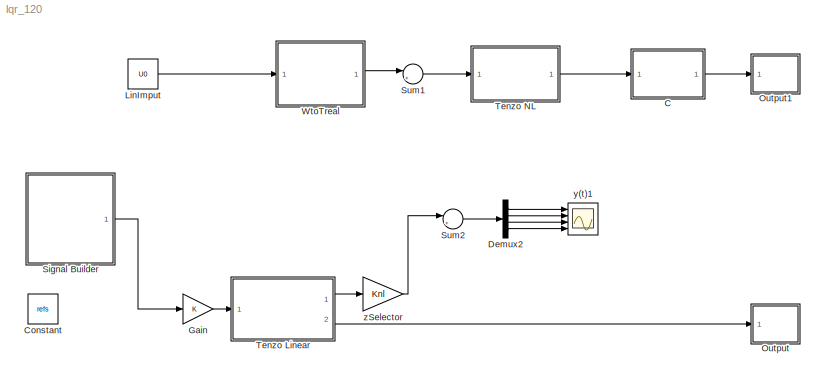
MODEL lqr_120
KIND model
BLOCK [SubSystem] C
  ErrorFcn = Stateflow.Translate.translate
  FunctionWithSeparateData = off
  MaskHideContents = off
  MinAlgLoopOccurrences = off
  Opaque = off
  PermitHierarchicalResolution = ExplicitOnly
  Ports = [1, 1]
  PropExecContextOutsideSubsystem = off
  RTWSystemCode = Auto
  RequestExecContextInheritance = off
  SFBlockType = MATLAB Function
  SID = 169
  TreatAsAtomicUnit = on
BLOCK [Demux] C/ Demux 
  Outputs = 1
  Ports = [1, 1]
  SID = 169::24
BLOCK [S-Function] C/ SFunction 
  EnableBusSupport = on
  FunctionName = sf_sfun
  PortCounts = [1 2]
  Ports = [1, 2]
  SID = 169::23
  Tag = Stateflow S-Function lqr_120 1
BLOCK [Terminator] C/ Terminator 
  SID = 169::25
BLOCK [Inport] C/X
  IconDisplay = Port number
  SID = 169::1
BLOCK [Outport] C/ymis
  IconDisplay = Port number
  SID = 169::5
BLOCK [Constant] Constant
  SID = 32
  Value = refs
BLOCK [Demux] Demux2
  DisplayOption = bar
  Ports = [1, 4]
  SID = 175
BLOCK [Gain] Gain
  OutDataTypeStr = Inherit: Inherit via internal rule
  ParamDataTypeStr = Inherit: Inherit via internal rule
  SID = 33
  SaturateOnIntegerOverflow = off
BLOCK [Constant] LinImput
  SID = 119
  Value = U0
BLOCK [SubSystem] Output
  FunctionWithSeparateData = off
  MaskHideContents = off
  MinAlgLoopOccurrences = off
  Opaque = off
  Ports = [1]
  PropExecContextOutsideSubsystem = off
  RTWSystemCode = Auto
  RequestExecContextInheritance = off
  SID = 46
BLOCK [Demux] Output/Demux2
  DisplayOption = bar
  Ports = [1, 4]
  SID = 48
BLOCK [Demux] Output/Demux3
  DisplayOption = bar
  Outputs = 3
  Ports = [1, 3]
  SID = 197
BLOCK [Inport] Output/In1
  IconDisplay = Port number
  SID = 47
BLOCK [Mux] Output/Mux
  DisplayOption = bar
  Inputs = 3
  Ports = [3, 1]
  SID = 202
BLOCK [Reference] Output/R2D  REF=simulink_extras/Transformations/Radians\nto Degrees
  Ports = [1, 1]
  SID = 198
  SourceBlock = simulink_extras/Transformations/Radians\nto Degrees
  SourceType = RadiansToDegrees
BLOCK [Scope] Output/y(t)1
  DataFormat = StructureWithTime
  Floating = off
  LimitDataPoints = off
  NumInputPorts = 4
  Ports = [4]
  SID = 50
  SampleTime = 0
  ShowLegends = off
  YMax = 0~1.75~0~1
  YMin = -1.75~0~-30~-2.25
  ZoomMode = xonly
BLOCK [SubSystem] Output1
  FunctionWithSeparateData = off
  MaskHideContents = off
  MinAlgLoopOccurrences = off
  Opaque = off
  Ports = [1]
  PropExecContextOutsideSubsystem = off
  RTWSystemCode = Auto
  RequestExecContextInheritance = off
  SID = 122
BLOCK [Demux] Output1/Demux3
  DisplayOption = bar
  Ports = [1, 4]
  SID = 203
BLOCK [Demux] Output1/Demux4
  DisplayOption = bar
  Outputs = 3
  Ports = [1, 3]
  SID = 204
BLOCK [Inport] Output1/In1
  IconDisplay = Port number
  SID = 123
BLOCK [Mux] Output1/Mux
  DisplayOption = bar
  Inputs = 3
  Ports = [3, 1]
  SID = 205
BLOCK [Reference] Output1/R2D  REF=simulink_extras/Transformations/Radians\nto Degrees
  Ports = [1, 1]
  SID = 206
  SourceBlock = simulink_extras/Transformations/Radians\nto Degrees
  SourceType = RadiansToDegrees
BLOCK [Scope] Output1/y(t)1
  DataFormat = StructureWithTime
  Floating = off
  LimitDataPoints = off
  NumInputPorts = 4
  Ports = [4]
  SID = 207
  SampleTime = 0
  SaveName = ScopeData10
  ShowLegends = off
  YMax = 68.7549~1~1~165
  YMin = 68.7549~-1~-1~151
BLOCK [SubSystem] Signal Builder
  ClipboardFcn = sigbuilder_block('clipboard');
  CloseFcn = sigbuilder_block('close');
  ContinueFcn = sigbuilder_block('continue');
  CopyFcn = sigbuilder_block('copy');
  DeleteFcn = sigbuilder_block('delete');
  FunctionWithSeparateData = off
  LoadFcn = sigbuilder_block('load');
  MaskCapabilities = slmaskedcaps(gcbh)
  MaskDescription = Simulink:masks:SigbuilderBlock_MD
  MaskDisplay = plot(0, 0, 100, 100,[2, 2, 32, 32, 2], [68, 8, 8, 68, 68],[32, 2], [38, 38], [32, 19, 2],[53, 60, 44], [32, 17, 17, 2],[16, 16, 31, 31]);txt = getActiveGroup(gcbh);text(2, 100, txt,'verticalAlignment', 'top');
  MaskHideContents = on
  MaskIconFrame = on
  MaskIconOpaque = off
  MaskIconRotate = port
  MaskIconUnits = autoscale
  MaskInitialization = if ~strcmp(get_param(bdroot(gcbh),'SimulationStatus'),'stopped') tuvar = sigbuilder_block('maskInit'); end
  MaskPortRotate = default
  MaskSelfModifiable = on
  MaskType = Sigbuilder block
  MinAlgLoopOccurrences = off
  ModelCloseFcn = sigbuilder_block('modelClose');
  NameChangeFcn = sigbuilder_block('namechange');
  Opaque = off
  OpenFcn = sigbuilder_block('open',[42.4 0 1050.4 528.8 ]);
  PauseFcn = sigbuilder_block('pause');
  Ports = [0, 1]
  PreSaveFcn = sigbuilder_block('preSave');
  PropExecContextOutsideSubsystem = off
  RTWSystemCode = Auto
  RequestExecContextInheritance = off
  SID = 180
  StartFcn = sigbuilder_block('start');
  StopFcn = sigbuilder_block('stop');
  Tag = STV Subsys
BLOCK [Outport] Signal Builder/Bus
  IconDisplay = Port number
  SID = 180:51
BLOCK [BusCreator] Signal Builder/Bus Creator
  Inputs = 8
  Ports = [8, 1]
  SID = 180:50
  Tag = Bus Creator
BLOCK [FromWorkspace] Signal Builder/FromWs
  SID = 180:2
  SampleTime = 0
  SigBuilderData = DataTag0
  Tag = STV FromWs
  VariableName = tuvar
  VnvData = DataTag1
  ZeroCross = on
BLOCK [SubSystem] Signal Builder/Subsystem
  FunctionWithSeparateData = off
  MaskHideContents = off
  MinAlgLoopOccurrences = off
  Opaque = off
  Ports = [1, 8]
  PropExecContextOutsideSubsystem = off
  RTWSystemCode = Auto
  RequestExecContextInheritance = off
  SID = 180:39
BLOCK [Demux] Signal Builder/Subsystem/Demux
  Outputs = 8
  Ports = [1, 8]
  SID = 180:40
  Tag = STV Demux
BLOCK [Inport] Signal Builder/Subsystem/In1
  IconDisplay = Port number
  SID = 180:49
BLOCK [Outport] Signal Builder/Subsystem/Psi
  IconDisplay = Port number
  Port = 5
  SID = 180:45
  Tag = STV Outport
BLOCK [Outport] Signal Builder/Subsystem/Ze
  IconDisplay = Port number
  SID = 180:41
  Tag = STV Outport
BLOCK [Outport] Signal Builder/Subsystem/phi
  IconDisplay = Port number
  Port = 3
  SID = 180:43
  Tag = STV Outport
BLOCK [Outport] Signal Builder/Subsystem/theta
  IconDisplay = Port number
  Port = 4
  SID = 180:44
  Tag = STV Outport
BLOCK [Outport] Signal Builder/Subsystem/vZe
  IconDisplay = Port number
  Port = 2
  SID = 180:42
  Tag = STV Outport
BLOCK [Outport] Signal Builder/Subsystem/wPhi
  IconDisplay = Port number
  Port = 6
  SID = 180:46
  Tag = STV Outport
BLOCK [Outport] Signal Builder/Subsystem/wPsi
  IconDisplay = Port number
  Port = 8
  SID = 180:48
  Tag = STV Outport
BLOCK [Outport] Signal Builder/Subsystem/wTheta
  IconDisplay = Port number
  Port = 7
  SID = 180:47
  Tag = STV Outport
BLOCK [Sum] Sum1
  IconShape = round
  InputSameDT = off
  Inputs = |++
  OutDataTypeStr = Inherit: Inherit via internal rule
  Ports = [2, 1]
  SID = 120
  SaturateOnIntegerOverflow = off
BLOCK [Sum] Sum2
  IconShape = round
  InputSameDT = off
  Inputs = |+-
  OutDataTypeStr = Inherit: Inherit via internal rule
  Ports = [2, 1]
  SID = 177
  SaturateOnIntegerOverflow = off
BLOCK [SubSystem] Tenzo Linear
  FunctionWithSeparateData = off
  MaskHideContents = off
  MinAlgLoopOccurrences = off
  Opaque = off
  Ports = [1, 2]
  PropExecContextOutsideSubsystem = off
  RTWSystemCode = Auto
  RequestExecContextInheritance = off
  SID = 140
BLOCK [SubSystem] Tenzo Linear/Error
  FunctionWithSeparateData = off
  MaskHideContents = off
  MinAlgLoopOccurrences = off
  Opaque = off
  Ports = [1]
  PropExecContextOutsideSubsystem = off
  RTWSystemCode = Auto
  RequestExecContextInheritance = off
  SID = 34
BLOCK [Demux] Tenzo Linear/Error/Demux10
  DisplayOption = bar
  Outputs = 2
  Ports = [1, 2]
  SID = 36
BLOCK [Demux] Tenzo Linear/Error/Demux2
  DisplayOption = bar
  Outputs = 2
  Ports = [1, 2]
  SID = 37
BLOCK [Demux] Tenzo Linear/Error/Demux3
  DisplayOption = bar
  Outputs = 2
  Ports = [1, 2]
  SID = 38
BLOCK [Demux] Tenzo Linear/Error/Demux4
  DisplayOption = bar
  Ports = [1, 4]
  SID = 39
BLOCK [Demux] Tenzo Linear/Error/Demux7
  DisplayOption = bar
  Outputs = 2
  Ports = [1, 2]
  SID = 40
BLOCK [Inport] Tenzo Linear/Error/In1
  IconDisplay = Port number
  SID = 35
BLOCK [Reference] Tenzo Linear/Error/R2D2  REF=simulink_extras/Transformations/Radians\nto Degrees
  Ports = [1, 1]
  SID = 41
  SourceBlock = simulink_extras/Transformations/Radians\nto Degrees
  SourceType = RadiansToDegrees
BLOCK [Reference] Tenzo Linear/Error/R2D3  REF=simulink_extras/Transformations/Radians\nto Degrees
  Ports = [1, 1]
  SID = 42
  SourceBlock = simulink_extras/Transformations/Radians\nto Degrees
  SourceType = RadiansToDegrees
BLOCK [Scope] Tenzo Linear/Error/RollPitchYaw1
  DataFormat = StructureWithTime
  Floating = off
  NumInputPorts = 3
  Ports = [3]
  SID = 43
  SampleTime = 0
  SaveName = ScopeData21
  ShowLegends = off
  YMax = -1400~1950~8e+06
  YMin = -2150~1300~5.75e+06
  ZoomMode = yonly
BLOCK [Scope] Tenzo Linear/Error/wx1
  DataFormat = StructureWithTime
  Floating = off
  NumInputPorts = 3
  Ports = [3]
  SID = 44
  SampleTime = 0
  SaveName = ScopeData24
  ShowLegends = off
  TimeRange = 10
  YMax = -320000~380000~2.5e+07
  YMin = -415000~295000~2.1e+07
BLOCK [Scope] Tenzo Linear/Error/xe1
  DataFormat = StructureWithTime
  Floating = off
  LimitDataPoints = off
  NumInputPorts = 2
  Ports = [2]
  SID = 45
  SampleTime = 0
  SaveName = ScopeData25
  ShowLegends = off
  TimeRange = 3
  YMax = 3e-05~3e-05
  YMin = 1.6e-05~1.6e-05
BLOCK [SubSystem] Tenzo Linear/Luenberger Obs
  FunctionWithSeparateData = off
  MaskHideContents = off
  MinAlgLoopOccurrences = off
  Opaque = off
  Ports = [2, 1]
  PropExecContextOutsideSubsystem = off
  RTWSystemCode = Auto
  RequestExecContextInheritance = off
  SID = 3
BLOCK [Demux] Tenzo Linear/Luenberger Obs/Demux1
  DisplayOption = bar
  Outputs = 3
  Ports = [1, 3]
  SID = 208
BLOCK [Demux] Tenzo Linear/Luenberger Obs/Demux2
  DisplayOption = bar
  Outputs = 8
  Ports = [1, 8]
  SID = 183
BLOCK [SubSystem] Tenzo Linear/Luenberger Obs/Luenberger
  FunctionWithSeparateData = off
  MaskHideContents = off
  MinAlgLoopOccurrences = off
  Opaque = off
  Ports = [2, 1]
  PropExecContextOutsideSubsystem = off
  RTWSystemCode = Auto
  RequestExecContextInheritance = off
  SID = 6
BLOCK [Mux] Tenzo Linear/Luenberger Obs/Luenberger/Mux
  DisplayOption = bar
  Inputs = [4 4]
  Ports = [2, 1]
  SID = 9
BLOCK [StateSpace] Tenzo Linear/Luenberger Obs/Luenberger/filtro di kalman
  A = Aoss
  B = Boss
  C = Coss
  D = Doss
  SID = 10
  X0 = [0 0 0 0 0 0 0 0]
BLOCK [Inport] Tenzo Linear/Luenberger Obs/Luenberger/u
  IconDisplay = Port number
  SID = 7
BLOCK [Outport] Tenzo Linear/Luenberger Obs/Luenberger/xi0
  IconDisplay = Port number
  SID = 11
BLOCK [Inport] Tenzo Linear/Luenberger Obs/Luenberger/y
  IconDisplay = Port number
  Port = 2
  SID = 8
BLOCK [Mux] Tenzo Linear/Luenberger Obs/Mux
  DisplayOption = bar
  Inputs = 3
  Ports = [3, 1]
  SID = 209
BLOCK [Mux] Tenzo Linear/Luenberger Obs/Mux1
  DisplayOption = bar
  Ports = [4, 1]
  SID = 212
BLOCK [Reference] Tenzo Linear/Luenberger Obs/R2D2  REF=simulink_extras/Transformations/Radians\nto Degrees
  Ports = [1, 1]
  SID = 210
  SourceBlock = simulink_extras/Transformations/Radians\nto Degrees
  SourceType = RadiansToDegrees
BLOCK [Scope] Tenzo Linear/Luenberger Obs/RollPitchYaw
  DataFormat = StructureWithTime
  Floating = off
  NumInputPorts = 3
  Ports = [3]
  SID = 188
  SampleTime = 0
  SaveName = ScopeData2
  ShowLegends = off
  YMax = 5~5~5
  YMin = -5~-5~-5
BLOCK [Sum] Tenzo Linear/Luenberger Obs/Sum
  IconShape = round
  InputSameDT = off
  Inputs = +-
  OutDataTypeStr = Inherit: Inherit via internal rule
  Ports = [2, 1]
  SID = 189
  SaturateOnIntegerOverflow = off
BLOCK [Outport] Tenzo Linear/Luenberger Obs/Xest
  IconDisplay = Port number
  SID = 12
BLOCK [Inport] Tenzo Linear/Luenberger Obs/u
  IconDisplay = Port number
  Port = 2
  SID = 5
BLOCK [Scope] Tenzo Linear/Luenberger Obs/wx
  DataFormat = StructureWithTime
  Floating = off
  NumInputPorts = 3
  Ports = [3]
  SID = 191
  SampleTime = 0
  SaveName = ScopeData6
  ShowLegends = off
  TimeRange = 15
  YMax = 5~5~5
  YMin = -5~-5~-5
BLOCK [Inport] Tenzo Linear/Luenberger Obs/y
  IconDisplay = Port number
  SID = 4
BLOCK [Scope] Tenzo Linear/Luenberger Obs/ze
  DataFormat = StructureWithTime
  Floating = off
  LimitDataPoints = off
  NumInputPorts = 2
  Ports = [2]
  SID = 192
  SampleTime = 0
  SaveName = ScopeData9
  ShowLegends = off
  TimeRange = 15
  YMax = 1.25e-14~1.5e-14
  YMin = -1e-14~-1.25e-14
BLOCK [Scope] Tenzo Linear/Luenberger Obs/ze1
  DataFormat = StructureWithTime
  Floating = off
  LimitDataPoints = off
  NumInputPorts = 1
  Ports = [1]
  SID = 214
  SampleTime = 0
  SaveName = ScopeData3
  ShowLegends = off
  TimeRange = 15
  YMax = 4.5
  YMin = -4.5
BLOCK [SubSystem] Tenzo Linear/Plot States
  FunctionWithSeparateData = off
  MaskHideContents = off
  MinAlgLoopOccurrences = off
  Opaque = off
  Ports = [1]
  PropExecContextOutsideSubsystem = off
  RTWSystemCode = Auto
  RequestExecContextInheritance = off
  SID = 14
BLOCK [Demux] Tenzo Linear/Plot States/Demux10
  DisplayOption = bar
  Outputs = 2
  Ports = [1, 2]
  SID = 16
BLOCK [Demux] Tenzo Linear/Plot States/Demux2
  DisplayOption = bar
  Outputs = 2
  Ports = [1, 2]
  SID = 17
BLOCK [Demux] Tenzo Linear/Plot States/Demux3
  DisplayOption = bar
  Outputs = 2
  Ports = [1, 2]
  SID = 18
BLOCK [Demux] Tenzo Linear/Plot States/Demux4
  DisplayOption = bar
  Ports = [1, 4]
  SID = 19
BLOCK [Demux] Tenzo Linear/Plot States/Demux7
  DisplayOption = bar
  Outputs = 2
  Ports = [1, 2]
  SID = 20
BLOCK [Inport] Tenzo Linear/Plot States/In1
  IconDisplay = Port number
  SID = 15
BLOCK [Reference] Tenzo Linear/Plot States/R2D2  REF=simulink_extras/Transformations/Radians\nto Degrees
  Ports = [1, 1]
  SID = 21
  SourceBlock = simulink_extras/Transformations/Radians\nto Degrees
  SourceType = RadiansToDegrees
BLOCK [Reference] Tenzo Linear/Plot States/R2D3  REF=simulink_extras/Transformations/Radians\nto Degrees
  Ports = [1, 1]
  SID = 22
  SourceBlock = simulink_extras/Transformations/Radians\nto Degrees
  SourceType = RadiansToDegrees
BLOCK [Scope] Tenzo Linear/Plot States/RollPitchYaw1
  DataFormat = StructureWithTime
  Floating = off
  NumInputPorts = 3
  Ports = [3]
  SID = 23
  SampleTime = 0
  SaveName = ScopeData21
  ShowLegends = off
  YMax = 5~5~5
  YMin = -5~-5~-5
  ZoomMode = yonly
BLOCK [Scope] Tenzo Linear/Plot States/wx1
  DataFormat = StructureWithTime
  Floating = off
  NumInputPorts = 3
  Ports = [3]
  SID = 24
  SampleTime = 0
  SaveName = ScopeData24
  ShowLegends = off
  TimeRange = 15
  YMax = 5~5~5
  YMin = -5~-5~-5
BLOCK [Scope] Tenzo Linear/Plot States/xe1
  DataFormat = StructureWithTime
  Floating = off
  LimitDataPoints = off
  NumInputPorts = 2
  Ports = [2]
  SID = 25
  SampleTime = 0
  SaveName = ScopeData25
  ShowLegends = off
  TimeRange = 3
  YMax = 3e-05~3e-05
  YMin = 1.6e-05~1.6e-05
BLOCK [Sum] Tenzo Linear/Sum
  IconShape = round
  InputSameDT = off
  Inputs = |++
  OutDataTypeStr = Inherit: Inherit via internal rule
  Ports = [2, 1]
  SID = 31
  SaturateOnIntegerOverflow = off
BLOCK [StateSpace] Tenzo Linear/Tenzo L
  A = AMin
  B = BMin
  C = ClocalMin
  D = D
  SID = 26
  X0 = [ze0 0 phi0 theta0 psi0 0 0 0 ]
BLOCK [ToWorkspace] Tenzo Linear/To Workspace
  MaxDataPoints = inf
  Ports = [1]
  SID = 174
  SampleTime = -1
  SaveFormat = Timeseries
  VariableName = output
BLOCK [Inport] Tenzo Linear/refs
  IconDisplay = Port number
  SID = 142
BLOCK [Outport] Tenzo Linear/u*(t)
  IconDisplay = Port number
  SID = 141
BLOCK [Outport] Tenzo Linear/y(t)
  IconDisplay = Port number
  Port = 2
  SID = 143
BLOCK [Gain] Tenzo Linear/zSelector
  Gain = -K
  Multiplication = Matrix(K*u)
  OutDataTypeStr = Inherit: Inherit via internal rule
  ParamDataTypeStr = Inherit: Inherit via internal rule
  SID = 30
  SaturateOnIntegerOverflow = off
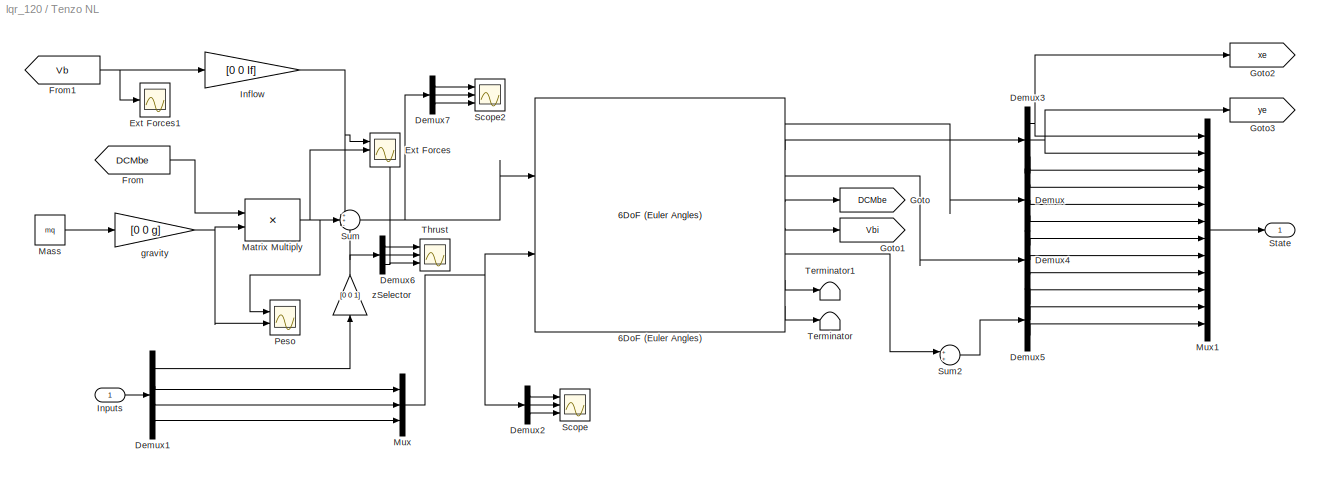
BLOCK [SubSystem] Tenzo NL
  FunctionWithSeparateData = off
  MaskHideContents = off
  MinAlgLoopOccurrences = off
  Opaque = off
  Ports = [1, 1]
  PropExecContextOutsideSubsystem = off
  RTWSystemCode = Auto
  RequestExecContextInheritance = off
  SID = 53
BLOCK [Reference] Tenzo NL/6DoF (Euler Angles)  REF=aerolib6dof2/6DoF (Euler Angles)
  Ports = [2, 8]
  SID = 55
  SourceBlock = aerolib6dof2/6DoF (Euler Angles)
  SourceType = 6DoF EoM (Body Axis)
  Vm_0 = [0 0 0]
  eul_0 = [phi0 0 psi0]
  inertia = II
  inertia_e = eye(3)
  inertia_f = 2*eye(3)
  k_quat = 1.0
  mass_0 = mq
  mass_e = 0.5
  mass_f = 2.0
  mtype = Fixed
  pm_0 = [0 0 0]
  rep = Euler Angles
  units = Metric (MKS)
  xme_0 = [0 0 ze0]
BLOCK [Demux] Tenzo NL/Demux
  DisplayOption = bar
  Outputs = 3
  Ports = [1, 3]
  SID = 56
BLOCK [Demux] Tenzo NL/Demux1
  DisplayOption = bar
  Ports = [1, 4]
  SID = 57
BLOCK [Demux] Tenzo NL/Demux2
  DisplayOption = bar
  Outputs = 3
  Ports = [1, 3]
  SID = 58
BLOCK [Demux] Tenzo NL/Demux3
  DisplayOption = bar
  Outputs = 3
  Ports = [1, 3]
  SID = 59
BLOCK [Demux] Tenzo NL/Demux4
  DisplayOption = bar
  Outputs = 3
  Ports = [1, 3]
  SID = 60
BLOCK [Demux] Tenzo NL/Demux5
  DisplayOption = bar
  Outputs = 3
  Ports = [1, 3]
  SID = 61
BLOCK [Demux] Tenzo NL/Demux6
  DisplayOption = bar
  Outputs = 3
  Ports = [1, 3]
  SID = 62
BLOCK [Demux] Tenzo NL/Demux7
  DisplayOption = bar
  Outputs = 3
  Ports = [1, 3]
  SID = 63
BLOCK [Scope] Tenzo NL/Ext Forces
  DataFormat = StructureWithTime
  Floating = off
  NumInputPorts = 3
  Ports = [3]
  SID = 64
  SampleInput = on
  SampleTime = 0.01
  SaveName = ScopeData5
  ShowLegends = off
  TimeRange = 30
  YMax = 0~2~5
  YMin = -950000~-8~-5
BLOCK [Scope] Tenzo NL/Ext Forces1
  DataFormat = StructureWithTime
  Floating = off
  NumInputPorts = 1
  Ports = [1]
  SID = 65
  SampleInput = on
  SampleTime = 0.01
  SaveName = ScopeData27
  ShowLegends = off
  TimeRange = 30
  YMax = 0
  YMin = -950000
  ZoomMode = yonly
BLOCK [From] Tenzo NL/From
  GotoTag = DCMbe
  SID = 66
BLOCK [From] Tenzo NL/From1
  GotoTag = Vb
  SID = 67
BLOCK [Goto] Tenzo NL/Goto
  GotoTag = DCMbe
  SID = 68
BLOCK [Goto] Tenzo NL/Goto1
  GotoTag = Vbi
  SID = 69
BLOCK [Goto] Tenzo NL/Goto2
  GotoTag = xe
  SID = 215
BLOCK [Goto] Tenzo NL/Goto3
  GotoTag = ye
  SID = 216
BLOCK [Gain] Tenzo NL/Inflow
  Gain = [0 0 If]
  OutDataTypeStr = Inherit: Inherit via internal rule
  ParamDataTypeStr = Inherit: Inherit via internal rule
  SID = 70
  SaturateOnIntegerOverflow = off
BLOCK [Inport] Tenzo NL/Inputs
  IconDisplay = Port number
  SID = 54
BLOCK [Constant] Tenzo NL/Mass
  SID = 71
  Value = mq
BLOCK [Product] Tenzo NL/Matrix Multiply
  InputSameDT = off
  Multiplication = Matrix(*)
  OutDataTypeStr = Inherit: Inherit via internal rule
  Ports = [2, 1]
  RndMeth = Floor
  SID = 72
  SaturateOnIntegerOverflow = off
BLOCK [Mux] Tenzo NL/Mux
  DisplayOption = bar
  Inputs = 3
  Ports = [3, 1]
  SID = 73
BLOCK [Mux] Tenzo NL/Mux1
  DisplayOption = bar
  Inputs = 12
  Ports = [12, 1]
  SID = 74
BLOCK [Scope] Tenzo NL/Peso
  DataFormat = StructureWithTime
  Floating = off
  NumInputPorts = 2
  Ports = [2]
  SID = 75
  SampleInput = on
  SampleTime = 0.01
  SaveName = ScopeData8
  ShowLegends = off
  TimeRange = 30
  YMax = 2~8.5
  YMin = -8~0
BLOCK [Scope] Tenzo NL/Scope
  DataFormat = StructureWithTime
  Floating = off
  LimitDataPoints = off
  NumInputPorts = 3
  Ports = [3]
  SID = 76
  SampleTime = 0
  SaveName = ScopeData4
  ShowLegends = off
  YMax = 28792.6~1~-607.435
  YMin = 26050.4~-1~-671.375
  ZoomMode = yonly
BLOCK [Scope] Tenzo NL/Scope2
  DataFormat = StructureWithTime
  Floating = off
  LimitDataPoints = off
  NumInputPorts = 3
  Ports = [3]
  SID = 77
  SampleTime = 0
  SaveName = ScopeData23
  ShowLegends = off
  YMax = 1~1~-0.4
  YMin = -1~-1~-2.3
  ZoomMode = xonly
BLOCK [Outport] Tenzo NL/State
  IconDisplay = Port number
  SID = 85
BLOCK [Sum] Tenzo NL/Sum
  IconShape = round
  InputSameDT = off
  Inputs = ++-
  OutDataTypeStr = Inherit: Inherit via internal rule
  Ports = [3, 1]
  SID = 78
  SaturateOnIntegerOverflow = off
BLOCK [Sum] Tenzo NL/Sum2
  IconShape = round
  InputSameDT = off
  OutDataTypeStr = Inherit: Inherit via internal rule
  Ports = [2, 1]
  SID = 79
  SaturateOnIntegerOverflow = off
BLOCK [Terminator] Tenzo NL/Terminator
  SID = 80
BLOCK [Terminator] Tenzo NL/Terminator1
  SID = 81
BLOCK [Scope] Tenzo NL/Thrust
  DataFormat = StructureWithTime
  Floating = off
  LimitDataPoints = off
  NumInputPorts = 3
  Ports = [3]
  SID = 82
  SampleTime = 0
  SaveName = ScopeData7
  ShowLegends = off
  YMax = 1~1~-0.4
  YMin = -1~-1~-2.3
  ZoomMode = xonly
BLOCK [Gain] Tenzo NL/gravity
  Gain = [0 0 g]
  OutDataTypeStr = Inherit: Inherit via internal rule
  ParamDataTypeStr = Inherit: Inherit via internal rule
  SID = 83
  SaturateOnIntegerOverflow = off
BLOCK [Gain] Tenzo NL/zSelector
  Gain = [0 0 1]
  OutDataTypeStr = Inherit: Inherit via internal rule
  ParamDataTypeStr = Inherit: Inherit via internal rule
  SID = 84
  SaturateOnIntegerOverflow = off
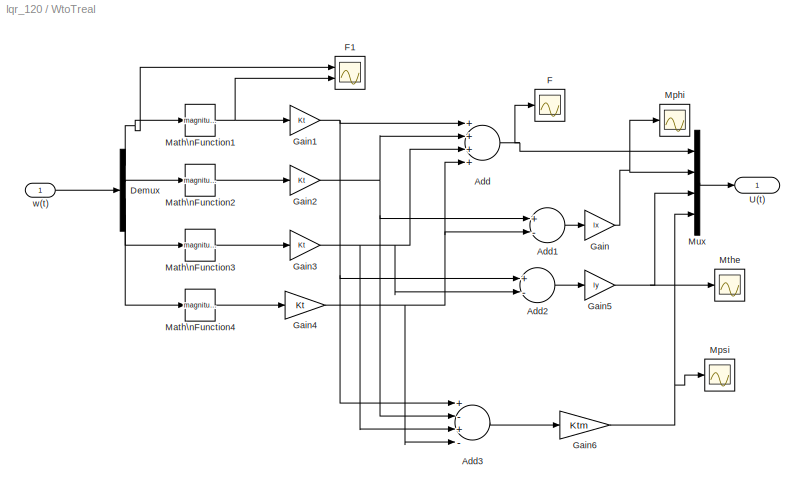
BLOCK [SubSystem] WtoTreal
  FunctionWithSeparateData = off
  MaskHideContents = off
  MinAlgLoopOccurrences = off
  Opaque = off
  Ports = [1, 1]
  PropExecContextOutsideSubsystem = off
  RTWSystemCode = Auto
  RequestExecContextInheritance = off
  SID = 144
BLOCK [Sum] WtoTreal/Add
  InputSameDT = off
  Inputs = ++++
  OutDataTypeStr = Inherit: Inherit via internal rule
  Ports = [4, 1]
  SID = 146
  SaturateOnIntegerOverflow = off
BLOCK [Sum] WtoTreal/Add1
  InputSameDT = off
  Inputs = +-
  OutDataTypeStr = Inherit: Inherit via internal rule
  Ports = [2, 1]
  SID = 147
  SaturateOnIntegerOverflow = off
BLOCK [Sum] WtoTreal/Add2
  InputSameDT = off
  Inputs = +-
  OutDataTypeStr = Inherit: Inherit via internal rule
  Ports = [2, 1]
  SID = 148
  SaturateOnIntegerOverflow = off
BLOCK [Sum] WtoTreal/Add3
  InputSameDT = off
  Inputs = +-+-
  OutDataTypeStr = Inherit: Inherit via internal rule
  Ports = [4, 1]
  SID = 149
  SaturateOnIntegerOverflow = off
BLOCK [Demux] WtoTreal/Demux
  DisplayOption = bar
  Ports = [1, 4]
  SID = 150
BLOCK [Scope] WtoTreal/F
  DataFormat = StructureWithTime
  Floating = off
  LimitDataPoints = off
  NumInputPorts = 1
  Ports = [1]
  SID = 151
  SampleTime = 0
  SaveName = ScopeData17
  ShowLegends = off
  ZoomMode = yonly
BLOCK [Scope] WtoTreal/F1
  DataFormat = StructureWithTime
  Floating = off
  NumInputPorts = 2
  Ports = [2]
  SID = 152
  SampleTime = 0
  SaveName = ScopeData19
  ShowLegends = off
  YMax = 5~5
  YMin = -5~-5
  ZoomMode = yonly
BLOCK [Gain] WtoTreal/Gain
  Gain = lx
  OutDataTypeStr = Inherit: Inherit via internal rule
  ParamDataTypeStr = Inherit: Inherit via internal rule
  SID = 153
  SaturateOnIntegerOverflow = off
BLOCK [Gain] WtoTreal/Gain1
  Gain = Kt
  OutDataTypeStr = Inherit: Inherit via internal rule
  ParamDataTypeStr = Inherit: Inherit via internal rule
  SID = 154
  SaturateOnIntegerOverflow = off
BLOCK [Gain] WtoTreal/Gain2
  Gain = Kt
  OutDataTypeStr = Inherit: Inherit via internal rule
  ParamDataTypeStr = Inherit: Inherit via internal rule
  SID = 155
  SaturateOnIntegerOverflow = off
BLOCK [Gain] WtoTreal/Gain3
  Gain = Kt
  OutDataTypeStr = Inherit: Inherit via internal rule
  ParamDataTypeStr = Inherit: Inherit via internal rule
  SID = 156
  SaturateOnIntegerOverflow = off
BLOCK [Gain] WtoTreal/Gain4
  Gain = Kt
  OutDataTypeStr = Inherit: Inherit via internal rule
  ParamDataTypeStr = Inherit: Inherit via internal rule
  SID = 157
  SaturateOnIntegerOverflow = off
BLOCK [Gain] WtoTreal/Gain5
  Gain = ly
  OutDataTypeStr = Inherit: Inherit via internal rule
  ParamDataTypeStr = Inherit: Inherit via internal rule
  SID = 158
  SaturateOnIntegerOverflow = off
BLOCK [Gain] WtoTreal/Gain6
  Gain = Ktm
  OutDataTypeStr = Inherit: Inherit via internal rule
  ParamDataTypeStr = Inherit: Inherit via internal rule
  SID = 159
  SaturateOnIntegerOverflow = off
BLOCK [Math] WtoTreal/Math\nFunction1
  Operator = magnitude^2
  Ports = [1, 1]
  SID = 160
BLOCK [Math] WtoTreal/Math\nFunction2
  Operator = magnitude^2
  Ports = [1, 1]
  SID = 161
BLOCK [Math] WtoTreal/Math\nFunction3
  Operator = magnitude^2
  Ports = [1, 1]
  SID = 162
BLOCK [Math] WtoTreal/Math\nFunction4
  Operator = magnitude^2
  Ports = [1, 1]
  SID = 163
BLOCK [Scope] WtoTreal/Mphi
  DataFormat = StructureWithTime
  Floating = off
  NumInputPorts = 1
  Ports = [1]
  SID = 164
  SampleTime = 0
  SaveName = ScopeData14
  ShowLegends = off
  ZoomMode = yonly
BLOCK [Scope] WtoTreal/Mpsi
  DataFormat = StructureWithTime
  Floating = off
  NumInputPorts = 1
  Ports = [1]
  SID = 165
  SampleTime = 0
  SaveName = ScopeData11
  ShowLegends = off
  ZoomMode = yonly
BLOCK [Scope] WtoTreal/Mthe
  DataFormat = StructureWithTime
  Floating = off
  NumInputPorts = 1
  Ports = [1]
  SID = 166
  SampleTime = 0
  SaveName = ScopeData13
  ShowLegends = off
BLOCK [Mux] WtoTreal/Mux
  DisplayOption = bar
  Ports = [4, 1]
  SID = 167
BLOCK [Outport] WtoTreal/U(t)
  IconDisplay = Port number
  SID = 168
BLOCK [Inport] WtoTreal/w(t)
  IconDisplay = Port number
  SID = 145
BLOCK [Scope] y(t)1
  DataFormat = StructureWithTime
  Floating = off
  LimitDataPoints = off
  NumInputPorts = 4
  Ports = [4]
  SID = 176
  SampleTime = 0
  SaveName = ScopeData1
  ShowLegends = off
  YMax = 2.5e+06~5e+22~-5e+21~2.75e+11
  YMin = -2.5e+06~5e+21~-5.5e+22~7.5e+10
  ZoomMode = xonly
BLOCK [Gain] zSelector
  Gain = Knl
  Multiplication = Matrix(K*u)
  OutDataTypeStr = Inherit: Inherit via internal rule
  ParamDataTypeStr = Inherit: Inherit via internal rule
  SID = 173
  SaturateOnIntegerOverflow = off
ANNOTATION Tenzo Linear/Luenberger Obs: 
LINE C/ Demux :1 -> C/ Terminator :1
LINE C/ SFunction :1 -> C/ Demux :1
LINE C/ SFunction :2 -> C/ymis:1
LINE C/X:1 -> C/ SFunction :1
LINE C:1 -> Output1:1
LINE Demux2:1 -> y(t)1:1
LINE Demux2:2 -> y(t)1:2
LINE Demux2:3 -> y(t)1:3
LINE Demux2:4 -> y(t)1:4
LINE Gain:1 -> Tenzo Linear:1
LINE LinImput:1 -> WtoTreal:1
LINE Output/Demux2:1 -> Output/Mux:1
LINE Output/Demux2:2 -> Output/Mux:2
LINE Output/Demux2:3 -> Output/Mux:3
LINE Output/Demux2:4 -> Output/y(t)1:4
LINE Output/Demux3:1 -> Output/y(t)1:1
LINE Output/Demux3:2 -> Output/y(t)1:2
LINE Output/Demux3:3 -> Output/y(t)1:3
LINE Output/In1:1 -> Output/Demux2:1
LINE Output/Mux:1 -> Output/R2D:1
LINE Output/R2D:1 -> Output/Demux3:1
LINE Output1/Demux3:1 -> Output1/Mux:1
LINE Output1/Demux3:2 -> Output1/Mux:2
LINE Output1/Demux3:3 -> Output1/Mux:3
LINE Output1/Demux3:4 -> Output1/y(t)1:4
LINE Output1/Demux4:1 -> Output1/y(t)1:1
LINE Output1/Demux4:2 -> Output1/y(t)1:2
LINE Output1/Demux4:3 -> Output1/y(t)1:3
LINE Output1/In1:1 -> Output1/Demux3:1
LINE Output1/Mux:1 -> Output1/R2D:1
LINE Output1/R2D:1 -> Output1/Demux4:1
LINE Signal Builder/Bus Creator:1 -> Signal Builder/Bus:1
LINE Signal Builder/FromWs:1 -> Signal Builder/Subsystem:1
LINE Signal Builder/Subsystem/Demux:1 -> Signal Builder/Subsystem/Ze:1
LINE Signal Builder/Subsystem/Demux:2 -> Signal Builder/Subsystem/vZe:1
LINE Signal Builder/Subsystem/Demux:3 -> Signal Builder/Subsystem/phi:1
LINE Signal Builder/Subsystem/Demux:4 -> Signal Builder/Subsystem/theta:1
LINE Signal Builder/Subsystem/Demux:5 -> Signal Builder/Subsystem/Psi:1
LINE Signal Builder/Subsystem/Demux:6 -> Signal Builder/Subsystem/wPhi:1
LINE Signal Builder/Subsystem/Demux:7 -> Signal Builder/Subsystem/wTheta:1
LINE Signal Builder/Subsystem/Demux:8 -> Signal Builder/Subsystem/wPsi:1
LINE Signal Builder/Subsystem/In1:1 -> Signal Builder/Subsystem/Demux:1
LINE Signal Builder/Subsystem:1 -> Signal Builder/Bus Creator:1
LINE Signal Builder/Subsystem:2 -> Signal Builder/Bus Creator:2
LINE Signal Builder/Subsystem:3 -> Signal Builder/Bus Creator:3
LINE Signal Builder/Subsystem:4 -> Signal Builder/Bus Creator:4
LINE Signal Builder/Subsystem:5 -> Signal Builder/Bus Creator:5
LINE Signal Builder/Subsystem:6 -> Signal Builder/Bus Creator:6
LINE Signal Builder/Subsystem:7 -> Signal Builder/Bus Creator:7
LINE Signal Builder/Subsystem:8 -> Signal Builder/Bus Creator:8
LINE Signal Builder:1 -> Gain:1
LINE Sum1:1 -> Tenzo NL:1
LINE Sum2:1 -> Demux2:1
LINE Tenzo Linear/Error/Demux10:1 -> Tenzo Linear/Error/wx1:2
LINE Tenzo Linear/Error/Demux10:2 -> Tenzo Linear/Error/wx1:3
LINE Tenzo Linear/Error/Demux2:1 -> Tenzo Linear/Error/xe1:1
LINE Tenzo Linear/Error/Demux2:2 -> Tenzo Linear/Error/xe1:2
LINE Tenzo Linear/Error/Demux3:1 -> Tenzo Linear/Error/RollPitchYaw1:1
LINE Tenzo Linear/Error/Demux3:2 -> Tenzo Linear/Error/RollPitchYaw1:2
LINE Tenzo Linear/Error/Demux4:1 -> Tenzo Linear/Error/Demux2:1
LINE Tenzo Linear/Error/Demux4:2 -> Tenzo Linear/Error/Demux3:1
LINE Tenzo Linear/Error/Demux4:3 -> Tenzo Linear/Error/R2D2:1
LINE Tenzo Linear/Error/Demux4:4 -> Tenzo Linear/Error/R2D3:1
LINE Tenzo Linear/Error/Demux7:1 -> Tenzo Linear/Error/RollPitchYaw1:3
LINE Tenzo Linear/Error/Demux7:2 -> Tenzo Linear/Error/wx1:1
LINE Tenzo Linear/Error/In1:1 -> Tenzo Linear/Error/Demux4:1
LINE Tenzo Linear/Error/R2D2:1 -> Tenzo Linear/Error/Demux7:1
LINE Tenzo Linear/Error/R2D3:1 -> Tenzo Linear/Error/Demux10:1
LINE Tenzo Linear/Luenberger Obs/Demux1:1 -> Tenzo Linear/Luenberger Obs/RollPitchYaw:1
LINE Tenzo Linear/Luenberger Obs/Demux1:2 -> Tenzo Linear/Luenberger Obs/RollPitchYaw:2
LINE Tenzo Linear/Luenberger Obs/Demux1:3 -> Tenzo Linear/Luenberger Obs/RollPitchYaw:3
NET Tenzo Linear/Luenberger Obs/Demux2:1 -> Tenzo Linear/Luenberger Obs/Mux1:1, Tenzo Linear/Luenberger Obs/ze:1
LINE Tenzo Linear/Luenberger Obs/Demux2:2 -> Tenzo Linear/Luenberger Obs/ze:2
NET Tenzo Linear/Luenberger Obs/Demux2:3 -> Tenzo Linear/Luenberger Obs/Mux1:2, Tenzo Linear/Luenberger Obs/Mux:1
NET Tenzo Linear/Luenberger Obs/Demux2:4 -> Tenzo Linear/Luenberger Obs/Mux1:3, Tenzo Linear/Luenberger Obs/Mux:2
NET Tenzo Linear/Luenberger Obs/Demux2:5 -> Tenzo Linear/Luenberger Obs/Mux1:4, Tenzo Linear/Luenberger Obs/Mux:3
LINE Tenzo Linear/Luenberger Obs/Demux2:6 -> Tenzo Linear/Luenberger Obs/wx:1
LINE Tenzo Linear/Luenberger Obs/Demux2:7 -> Tenzo Linear/Luenberger Obs/wx:2
LINE Tenzo Linear/Luenberger Obs/Demux2:8 -> Tenzo Linear/Luenberger Obs/wx:3
LINE Tenzo Linear/Luenberger Obs/Luenberger/Mux:1 -> Tenzo Linear/Luenberger Obs/Luenberger/filtro di kalman:1
LINE Tenzo Linear/Luenberger Obs/Luenberger/filtro di kalman:1 -> Tenzo Linear/Luenberger Obs/Luenberger/xi0:1
LINE Tenzo Linear/Luenberger Obs/Luenberger/u:1 -> Tenzo Linear/Luenberger Obs/Luenberger/Mux:1
LINE Tenzo Linear/Luenberger Obs/Luenberger/y:1 -> Tenzo Linear/Luenberger Obs/Luenberger/Mux:2
NET Tenzo Linear/Luenberger Obs/Luenberger:1 -> Tenzo Linear/Luenberger Obs/Demux2:1, Tenzo Linear/Luenberger Obs/Xest:1
LINE Tenzo Linear/Luenberger Obs/Mux1:1 -> Tenzo Linear/Luenberger Obs/Sum:2
LINE Tenzo Linear/Luenberger Obs/Mux:1 -> Tenzo Linear/Luenberger Obs/R2D2:1
LINE Tenzo Linear/Luenberger Obs/R2D2:1 -> Tenzo Linear/Luenberger Obs/Demux1:1
LINE Tenzo Linear/Luenberger Obs/Sum:1 -> Tenzo Linear/Luenberger Obs/ze1:1
LINE Tenzo Linear/Luenberger Obs/u:1 -> Tenzo Linear/Luenberger Obs/Luenberger:1
NET Tenzo Linear/Luenberger Obs/y:1 -> Tenzo Linear/Luenberger Obs/Luenberger:2, Tenzo Linear/Luenberger Obs/Sum:1
NET Tenzo Linear/Luenberger Obs:1 -> Tenzo Linear/Plot States:1, Tenzo Linear/Sum:2
LINE Tenzo Linear/Plot States/Demux10:1 -> Tenzo Linear/Plot States/wx1:2
LINE Tenzo Linear/Plot States/Demux10:2 -> Tenzo Linear/Plot States/wx1:3
LINE Tenzo Linear/Plot States/Demux2:1 -> Tenzo Linear/Plot States/xe1:1
LINE Tenzo Linear/Plot States/Demux2:2 -> Tenzo Linear/Plot States/xe1:2
LINE Tenzo Linear/Plot States/Demux3:1 -> Tenzo Linear/Plot States/RollPitchYaw1:1
LINE Tenzo Linear/Plot States/Demux3:2 -> Tenzo Linear/Plot States/RollPitchYaw1:2
LINE Tenzo Linear/Plot States/Demux4:1 -> Tenzo Linear/Plot States/Demux2:1
LINE Tenzo Linear/Plot States/Demux4:2 -> Tenzo Linear/Plot States/Demux3:1
LINE Tenzo Linear/Plot States/Demux4:3 -> Tenzo Linear/Plot States/R2D2:1
LINE Tenzo Linear/Plot States/Demux4:4 -> Tenzo Linear/Plot States/R2D3:1
LINE Tenzo Linear/Plot States/Demux7:1 -> Tenzo Linear/Plot States/RollPitchYaw1:3
LINE Tenzo Linear/Plot States/Demux7:2 -> Tenzo Linear/Plot States/wx1:1
LINE Tenzo Linear/Plot States/In1:1 -> Tenzo Linear/Plot States/Demux4:1
LINE Tenzo Linear/Plot States/R2D2:1 -> Tenzo Linear/Plot States/Demux7:1
LINE Tenzo Linear/Plot States/R2D3:1 -> Tenzo Linear/Plot States/Demux10:1
NET Tenzo Linear/Sum:1 -> Tenzo Linear/Error:1, Tenzo Linear/zSelector:1
NET Tenzo Linear/Tenzo L:1 -> Tenzo Linear/Luenberger Obs:1, Tenzo Linear/y(t):1
LINE Tenzo Linear/refs:1 -> Tenzo Linear/Sum:1
NET Tenzo Linear/zSelector:1 -> Tenzo Linear/Luenberger Obs:2, Tenzo Linear/Tenzo L:1, Tenzo Linear/To Workspace:1, Tenzo Linear/u*(t):1
LINE Tenzo Linear:1 -> zSelector:1
LINE Tenzo Linear:2 -> Output:1
LINE Tenzo NL/6DoF (Euler Angles):1 -> Tenzo NL/Demux:1
LINE Tenzo NL/6DoF (Euler Angles):2 -> Tenzo NL/Demux3:1
LINE Tenzo NL/6DoF (Euler Angles):3 -> Tenzo NL/Demux4:1
LINE Tenzo NL/6DoF (Euler Angles):4 -> Tenzo NL/Goto:1
LINE Tenzo NL/6DoF (Euler Angles):5 -> Tenzo NL/Goto1:1
LINE Tenzo NL/6DoF (Euler Angles):6 -> Tenzo NL/Sum2:1
LINE Tenzo NL/6DoF (Euler Angles):7 -> Tenzo NL/Terminator1:1
LINE Tenzo NL/6DoF (Euler Angles):8 -> Tenzo NL/Terminator:1
LINE Tenzo NL/Demux1:1 -> Tenzo NL/zSelector:1
LINE Tenzo NL/Demux1:2 -> Tenzo NL/Mux:1
LINE Tenzo NL/Demux1:3 -> Tenzo NL/Mux:2
LINE Tenzo NL/Demux1:4 -> Tenzo NL/Mux:3
LINE Tenzo NL/Demux2:1 -> Tenzo NL/Scope:1
LINE Tenzo NL/Demux2:2 -> Tenzo NL/Scope:2
LINE Tenzo NL/Demux2:3 -> Tenzo NL/Scope:3
NET Tenzo NL/Demux3:1 -> Tenzo NL/Goto2:1, Tenzo NL/Mux1:1
NET Tenzo NL/Demux3:2 -> Tenzo NL/Goto3:1, Tenzo NL/Mux1:2
LINE Tenzo NL/Demux3:3 -> Tenzo NL/Mux1:3
LINE Tenzo NL/Demux4:1 -> Tenzo NL/Mux1:7
LINE Tenzo NL/Demux4:2 -> Tenzo NL/Mux1:8
LINE Tenzo NL/Demux4:3 -> Tenzo NL/Mux1:9
LINE Tenzo NL/Demux5:1 -> Tenzo NL/Mux1:10
LINE Tenzo NL/Demux5:2 -> Tenzo NL/Mux1:11
LINE Tenzo NL/Demux5:3 -> Tenzo NL/Mux1:12
LINE Tenzo NL/Demux6:1 -> Tenzo NL/Thrust:1
LINE Tenzo NL/Demux6:2 -> Tenzo NL/Thrust:2
NET Tenzo NL/Demux6:3 -> Tenzo NL/Ext Forces:3, Tenzo NL/Thrust:3
LINE Tenzo NL/Demux7:1 -> Tenzo NL/Scope2:1
LINE Tenzo NL/Demux7:2 -> Tenzo NL/Scope2:2
LINE Tenzo NL/Demux7:3 -> Tenzo NL/Scope2:3
LINE Tenzo NL/Demux:1 -> Tenzo NL/Mux1:4
LINE Tenzo NL/Demux:2 -> Tenzo NL/Mux1:5
LINE Tenzo NL/Demux:3 -> Tenzo NL/Mux1:6
NET Tenzo NL/From1:1 -> Tenzo NL/Ext Forces1:1, Tenzo NL/Inflow:1
LINE Tenzo NL/From:1 -> Tenzo NL/Matrix Multiply:1
NET Tenzo NL/Inflow:1 -> Tenzo NL/Ext Forces:1, Tenzo NL/Sum:1
LINE Tenzo NL/Inputs:1 -> Tenzo NL/Demux1:1
LINE Tenzo NL/Mass:1 -> Tenzo NL/gravity:1
NET Tenzo NL/Matrix Multiply:1 -> Tenzo NL/Ext Forces:2, Tenzo NL/Peso:1, Tenzo NL/Sum:2
LINE Tenzo NL/Mux1:1 -> Tenzo NL/State:1
NET Tenzo NL/Mux:1 -> Tenzo NL/6DoF (Euler Angles):2, Tenzo NL/Demux2:1
LINE Tenzo NL/Sum2:1 -> Tenzo NL/Demux5:1
NET Tenzo NL/Sum:1 -> Tenzo NL/6DoF (Euler Angles):1, Tenzo NL/Demux7:1
NET Tenzo NL/gravity:1 -> Tenzo NL/Matrix Multiply:2, Tenzo NL/Peso:2
NET Tenzo NL/zSelector:1 -> Tenzo NL/Demux6:1, Tenzo NL/Sum:3
LINE Tenzo NL:1 -> C:1
LINE WtoTreal/Add1:1 -> WtoTreal/Gain:1
LINE WtoTreal/Add2:1 -> WtoTreal/Gain5:1
LINE WtoTreal/Add3:1 -> WtoTreal/Gain6:1
NET WtoTreal/Add:1 -> WtoTreal/F:1, WtoTreal/Mux:1
NET WtoTreal/Demux:1 -> WtoTreal/F1:1, WtoTreal/Math\nFunction1:1
LINE WtoTreal/Demux:2 -> WtoTreal/Math\nFunction2:1
LINE WtoTreal/Demux:3 -> WtoTreal/Math\nFunction3:1
LINE WtoTreal/Demux:4 -> WtoTreal/Math\nFunction4:1
NET WtoTreal/Gain1:1 -> WtoTreal/Add2:1, WtoTreal/Add3:1, WtoTreal/Add:1
NET WtoTreal/Gain2:1 -> WtoTreal/Add1:1, WtoTreal/Add3:2, WtoTreal/Add:2
NET WtoTreal/Gain3:1 -> WtoTreal/Add2:2, WtoTreal/Add3:3, WtoTreal/Add:3
NET WtoTreal/Gain4:1 -> WtoTreal/Add1:2, WtoTreal/Add3:4, WtoTreal/Add:4
NET WtoTreal/Gain5:1 -> WtoTreal/Mthe:1, WtoTreal/Mux:3
NET WtoTreal/Gain6:1 -> WtoTreal/Mpsi:1, WtoTreal/Mux:4
NET WtoTreal/Gain:1 -> WtoTreal/Mphi:1, WtoTreal/Mux:2
NET WtoTreal/Math\nFunction1:1 -> WtoTreal/F1:2, WtoTreal/Gain1:1
LINE WtoTreal/Math\nFunction2:1 -> WtoTreal/Gain2:1
LINE WtoTreal/Math\nFunction3:1 -> WtoTreal/Gain3:1
LINE WtoTreal/Math\nFunction4:1 -> WtoTreal/Gain4:1
LINE WtoTreal/Mux:1 -> WtoTreal/U(t):1
LINE WtoTreal/w(t):1 -> WtoTreal/Demux:1
LINE WtoTreal:1 -> Sum1:1
LINE zSelector:1 -> Sum2:1
note: NET lines group one-source signal fan-out (src -> all destinations, sorted); 1:1 wires keep LINE
CHART C states=1 transitions=1
  STATE_LABEL 'eML_blk_kernel()'
